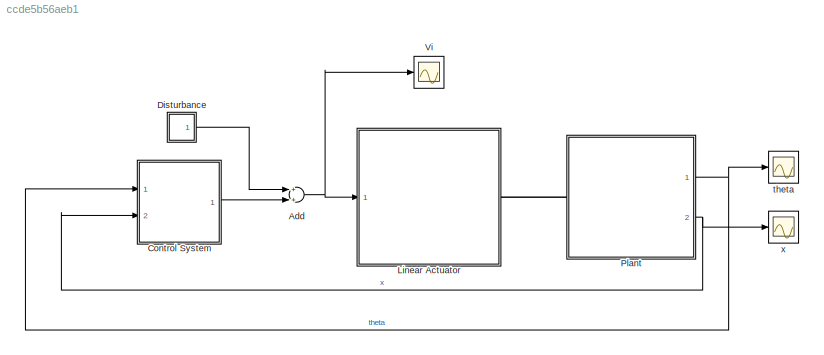
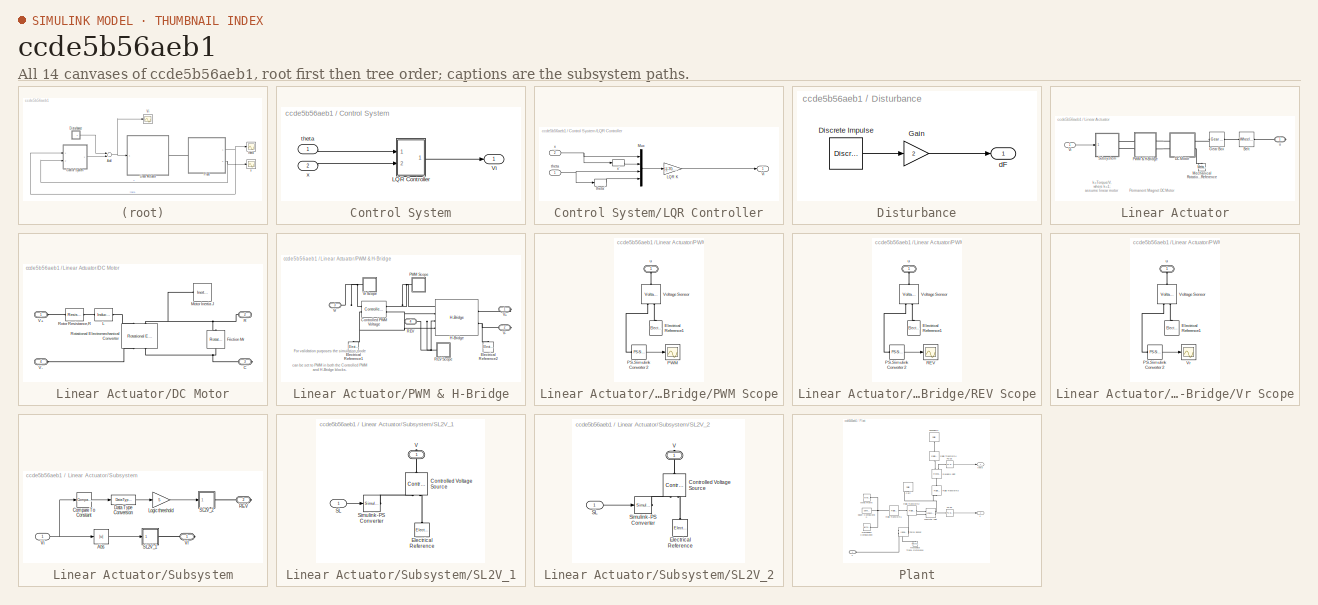
[diagram: thumbnail index - all 14 canvases of the model, root first then tree order]
MODEL slx_ccde5b56aeb1
KIND model
CONFIG AbsTol = auto
CONFIG FixedStep = auto
CONFIG MaxStep = 1e-3
CONFIG MinStep = auto
CONFIG RelTol = 1e-3
CONFIG SampleTimeConstraint = Unconstrained
CONFIG Solver = ode15s
CONFIG SolverMode = Auto
CONFIG SolverName = ode15s
CONFIG StartTime = 0.0
CONFIG StopTime = 12.00
WORKSPACE source: MATLAB code (in-file)
WORKSPACE mCart = 1
WORKSPACE mPend = 1
WORKSPACE g = 9.81
WORKSPACE L = 0.5
WORKSPACE theta0 = 0
WORKSPACE Kd = 10
BLOCK [Sum] Add
  InputSameDT = off
  OutDataTypeStr = Inherit: Inherit via internal rule
  Ports = [2, 1]
  SaturateOnIntegerOverflow = off
BLOCK [SubSystem] Control System
  Ports = [2, 1]
  RequestExecContextInheritance = off
  Variant = off
BLOCK [SubSystem] Control System/LQR Controller
  Ports = [2, 1]
  RequestExecContextInheritance = off
  Variant = off
BLOCK [Gain] Control System/LQR Controller/LQR K
  Gain = [-[-70.7107,-39.8418,-112.9919,-26.0522]]
  Multiplication = Matrix(K*u)
  OutDataTypeStr = Inherit: Inherit via internal rule
  ParamDataTypeStr = Inherit: Inherit via internal rule
  SaturateOnIntegerOverflow = off
BLOCK [Mux] Control System/LQR Controller/Mux
  DisplayOption = bar
  Ports = [4, 1]
BLOCK [Outport] Control System/LQR Controller/Vi
  IconDisplay = Port number
BLOCK [Inport] Control System/LQR Controller/theta
  IconDisplay = Port number
BLOCK [Derivative] Control System/LQR Controller/theta'
BLOCK [Inport] Control System/LQR Controller/x
  IconDisplay = Port number
  Port = 2
BLOCK [Derivative] Control System/LQR Controller/x'
BLOCK [Outport] Control System/Vi
  IconDisplay = Port number
BLOCK [Inport] Control System/theta
  IconDisplay = Port number
BLOCK [Inport] Control System/x
  IconDisplay = Port number
  Port = 2
BLOCK [SubSystem] Disturbance
  Ports = [0, 1]
  RequestExecContextInheritance = off
  Variant = off
BLOCK [Reference] Disturbance/Discrete Impulse  REF=dspsrcs4/Discrete 
Impulse
  Ports = [0, 1]
  SourceBlock = dspsrcs4/Discrete \nImpulse
  SourceType = Discrete Impulse
BLOCK [Gain] Disturbance/Gain
  Gain = 2
  OutDataTypeStr = Inherit: Inherit via internal rule
  ParamDataTypeStr = Inherit: Inherit via internal rule
  SaturateOnIntegerOverflow = off
BLOCK [Outport] Disturbance/dF
  IconDisplay = Port number
BLOCK [SubSystem] Linear Actuator
  Ports = [1, 0, 0, 0, 0, 0, 1]
  RequestExecContextInheritance = off
  Variant = off
BLOCK [Reference] Linear Actuator/Belt  REF=fl_lib/Mechanical/Mechanisms/Wheel and Axle
  Ports = [0, 0, 0, 0, 0, 1, 1]
  SourceBlock = fl_lib/Mechanical/Mechanisms/Wheel and Axle
  SourceType = Wheel and Axle
BLOCK [SubSystem] Linear Actuator/DC Motor
  Ports = [0, 0, 0, 0, 0, 2, 2]
  RequestExecContextInheritance = off
  Variant = off
BLOCK [PMIOPort] Linear Actuator/DC Motor/C
  Port = 3
  Side = Right
BLOCK [Reference] Linear Actuator/DC Motor/Friction Mr  REF=fl_lib/Mechanical/Rotational Elements/Rotational Friction
  Ports = [0, 0, 0, 0, 0, 1, 1]
  SourceBlock = fl_lib/Mechanical/Rotational Elements/Rotational Friction
  SourceType = Rotational Friction
BLOCK [Reference] Linear Actuator/DC Motor/L  REF=fl_lib/Electrical/Electrical Elements/Inductor
  Ports = [0, 0, 0, 0, 0, 1, 1]
  SourceBlock = fl_lib/Electrical/Electrical Elements/Inductor
  SourceType = Inductor
BLOCK [Reference] Linear Actuator/DC Motor/Motor Inertia J  REF=fl_lib/Mechanical/Rotational Elements/Inertia
  Ports = [0, 0, 0, 0, 0, 1]
  SourceBlock = fl_lib/Mechanical/Rotational Elements/Inertia
  SourceType = Inertia
BLOCK [PMIOPort] Linear Actuator/DC Motor/R
  Port = 2
  Side = Right
BLOCK [Reference] Linear Actuator/DC Motor/Rotational Electromechanical Converter  REF=fl_lib/Electrical/Electrical Elements/Rotational
Electromechanical
Converter
  Ports = [0, 0, 0, 0, 0, 2, 2]
  SourceBlock = fl_lib/Electrical/Electrical Elements/Rotational\nElectromechanical\nConverter
  SourceType = Rotational\nElectromechanical\nConverter
BLOCK [Reference] Linear Actuator/DC Motor/Rotor Resistance,R  REF=fl_lib/Electrical/Electrical Elements/Resistor
  Ports = [0, 0, 0, 0, 0, 1, 1]
  SourceBlock = fl_lib/Electrical/Electrical Elements/Resistor
  SourceType = Resistor
  Tag = Factory Generic
BLOCK [PMIOPort] Linear Actuator/DC Motor/V+
  Port = 1
  Side = Left
BLOCK [PMIOPort] Linear Actuator/DC Motor/V-
  Port = 4
  Side = Left
BLOCK [Reference] Linear Actuator/Gear Box  REF=fl_lib/Mechanical/Mechanisms/Gear Box
  Ports = [0, 0, 0, 0, 0, 1, 1]
  SourceBlock = fl_lib/Mechanical/Mechanisms/Gear Box
  SourceType = Gear Box
BLOCK [Reference] Linear Actuator/Mechanical Rotational Reference  REF=fl_lib/Mechanical/Rotational Elements/Mechanical
Rotational Reference
  Ports = [0, 0, 0, 0, 0, 1]
  SourceBlock = fl_lib/Mechanical/Rotational Elements/Mechanical\nRotational Reference
  SourceType = Mechanical\nRotational Reference
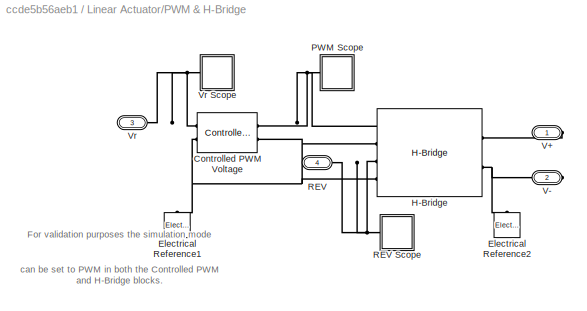
BLOCK [SubSystem] Linear Actuator/PWM & H-Bridge
  Ports = [0, 0, 0, 0, 0, 2, 2]
  RequestExecContextInheritance = off
  Variant = off
BLOCK [Reference] Linear Actuator/PWM & H-Bridge/Controlled PWM Voltage  REF=elec_lib/Actuators & Drivers/Drivers/Controlled PWM
Voltage
  Ports = [0, 0, 0, 0, 0, 2, 2]
  SourceBlock = elec_lib/Actuators & Drivers/Drivers/Controlled PWM\nVoltage
  SourceType = Controlled PWM\nVoltage
BLOCK [Reference] Linear Actuator/PWM & H-Bridge/Electrical Reference1  REF=fl_lib/Electrical/Electrical Elements/Electrical Reference
  Ports = [0, 0, 0, 0, 0, 1]
  SourceBlock = fl_lib/Electrical/Electrical Elements/Electrical Reference
  SourceType = Electrical Reference
BLOCK [Reference] Linear Actuator/PWM & H-Bridge/Electrical Reference2  REF=fl_lib/Electrical/Electrical Elements/Electrical Reference
  Ports = [0, 0, 0, 0, 0, 1]
  SourceBlock = fl_lib/Electrical/Electrical Elements/Electrical Reference
  SourceType = Electrical Reference
BLOCK [Reference] Linear Actuator/PWM & H-Bridge/H-Bridge  REF=elec_lib/Actuators & Drivers/Drivers/H-Bridge
  Ports = [0, 0, 0, 0, 0, 4, 2]
  SourceBlock = elec_lib/Actuators & Drivers/Drivers/H-Bridge
  SourceType = H-Bridge
BLOCK [SubSystem] Linear Actuator/PWM & H-Bridge/PWM Scope
  Ports = [0, 0, 0, 0, 0, 1]
  RequestExecContextInheritance = off
  Variant = off
BLOCK [Reference] Linear Actuator/PWM & H-Bridge/PWM Scope/Electrical Reference1  REF=fl_lib/Electrical/Electrical Elements/Electrical Reference
  Ports = [0, 0, 0, 0, 0, 1]
  SourceBlock = fl_lib/Electrical/Electrical Elements/Electrical Reference
  SourceType = Electrical Reference
BLOCK [Reference] Linear Actuator/PWM & H-Bridge/PWM Scope/PS-Simulink Converter 2  REF=nesl_utility/PS-Simulink
Converter
  Ports = [0, 1, 0, 0, 0, 1]
  SourceBlock = nesl_utility/PS-Simulink\nConverter
  SourceType = PS-Simulink\nConverter
BLOCK [Scope] Linear Actuator/PWM & H-Bridge/PWM Scope/PWM
  Ports = [1]
  ScopeSpecificationString = Simulink.scopes.TimeScopeBlockCfg('CurrentConfiguration', extmgr.ConfigurationSet(extmgr.Configuration('Core','General UI',true),extmgr.Configuration('Core','Source UI',true),extmgr.Configuration('Sources','WiredSimulink',true,'DataLoggingVariableName','ScopeData6','DataLoggingSaveFormat','StructureWithTime','DataLoggingDecimation','1','DataLoggingDecimateData',true),extmgr.Configuration('Visuals'...<+1635ch>
BLOCK [Reference] Linear Actuator/PWM & H-Bridge/PWM Scope/Voltage Sensor  REF=fl_lib/Electrical/Electrical Sensors/Voltage Sensor
  Ports = [0, 0, 0, 0, 0, 1, 2]
  SourceBlock = fl_lib/Electrical/Electrical Sensors/Voltage Sensor
  SourceType = Voltage Sensor
BLOCK [PMIOPort] Linear Actuator/PWM & H-Bridge/PWM Scope/u
  Port = 1
  Side = Left
BLOCK [PMIOPort] Linear Actuator/PWM & H-Bridge/REV
  Port = 4
  Side = Left
BLOCK [SubSystem] Linear Actuator/PWM & H-Bridge/REV Scope
  Ports = [0, 0, 0, 0, 0, 1]
  RequestExecContextInheritance = off
  Variant = off
BLOCK [Reference] Linear Actuator/PWM & H-Bridge/REV Scope/Electrical Reference1  REF=fl_lib/Electrical/Electrical Elements/Electrical Reference
  Ports = [0, 0, 0, 0, 0, 1]
  SourceBlock = fl_lib/Electrical/Electrical Elements/Electrical Reference
  SourceType = Electrical Reference
BLOCK [Reference] Linear Actuator/PWM & H-Bridge/REV Scope/PS-Simulink Converter 2  REF=nesl_utility/PS-Simulink
Converter
  Ports = [0, 1, 0, 0, 0, 1]
  SourceBlock = nesl_utility/PS-Simulink\nConverter
  SourceType = PS-Simulink\nConverter
BLOCK [Scope] Linear Actuator/PWM & H-Bridge/REV Scope/REV
  Ports = [1]
  ScopeSpecificationString = Simulink.scopes.TimeScopeBlockCfg('CurrentConfiguration', extmgr.ConfigurationSet(extmgr.Configuration('Core','General UI',true),extmgr.Configuration('Core','Source UI',true),extmgr.Configuration('Sources','WiredSimulink',true,'DataLoggingVariableName','ScopeData6','DataLoggingSaveFormat','StructureWithTime','DataLoggingDecimation','1','DataLoggingDecimateData',true),extmgr.Configuration('Visuals'...<+1636ch>
BLOCK [Reference] Linear Actuator/PWM & H-Bridge/REV Scope/Voltage Sensor  REF=fl_lib/Electrical/Electrical Sensors/Voltage Sensor
  Ports = [0, 0, 0, 0, 0, 1, 2]
  SourceBlock = fl_lib/Electrical/Electrical Sensors/Voltage Sensor
  SourceType = Voltage Sensor
BLOCK [PMIOPort] Linear Actuator/PWM & H-Bridge/REV Scope/u
  Port = 1
  Side = Left
BLOCK [PMIOPort] Linear Actuator/PWM & H-Bridge/V+
  Port = 1
  Side = Right
BLOCK [PMIOPort] Linear Actuator/PWM & H-Bridge/V-
  Port = 2
  Side = Right
BLOCK [PMIOPort] Linear Actuator/PWM & H-Bridge/Vr
  Port = 3
  Side = Left
BLOCK [SubSystem] Linear Actuator/PWM & H-Bridge/Vr Scope
  Ports = [0, 0, 0, 0, 0, 1]
  RequestExecContextInheritance = off
  Variant = off
BLOCK [Reference] Linear Actuator/PWM & H-Bridge/Vr Scope/Electrical Reference1  REF=fl_lib/Electrical/Electrical Elements/Electrical Reference
  Ports = [0, 0, 0, 0, 0, 1]
  SourceBlock = fl_lib/Electrical/Electrical Elements/Electrical Reference
  SourceType = Electrical Reference
BLOCK [Reference] Linear Actuator/PWM & H-Bridge/Vr Scope/PS-Simulink Converter 2  REF=nesl_utility/PS-Simulink
Converter
  Ports = [0, 1, 0, 0, 0, 1]
  SourceBlock = nesl_utility/PS-Simulink\nConverter
  SourceType = PS-Simulink\nConverter
BLOCK [Reference] Linear Actuator/PWM & H-Bridge/Vr Scope/Voltage Sensor  REF=fl_lib/Electrical/Electrical Sensors/Voltage Sensor
  Ports = [0, 0, 0, 0, 0, 1, 2]
  SourceBlock = fl_lib/Electrical/Electrical Sensors/Voltage Sensor
  SourceType = Voltage Sensor
BLOCK [Scope] Linear Actuator/PWM & H-Bridge/Vr Scope/Vr
  Ports = [1]
  ScopeSpecificationString = Simulink.scopes.TimeScopeBlockCfg('CurrentConfiguration', extmgr.ConfigurationSet(extmgr.Configuration('Core','General UI',true),extmgr.Configuration('Core','Source UI',true),extmgr.Configuration('Sources','WiredSimulink',true,'DataLoggingVariableName','ScopeData6','DataLoggingSaveFormat','StructureWithTime','DataLoggingDecimation','1','DataLoggingDecimateData',true),extmgr.Configuration('Visuals'...<+1637ch>
BLOCK [PMIOPort] Linear Actuator/PWM & H-Bridge/Vr Scope/u
  Port = 1
  Side = Left
BLOCK [SubSystem] Linear Actuator/Subsystem
  Ports = [1, 0, 0, 0, 0, 0, 2]
  RequestExecContextInheritance = off
  Variant = off
BLOCK [Abs] Linear Actuator/Subsystem/Abs
  SaturateOnIntegerOverflow = off
  ZeroCross = off
BLOCK [Reference] Linear Actuator/Subsystem/Compare To Constant  REF=simulink/Logic and Bit
Operations/Compare
To Constant
  Ports = [1, 1]
  SourceBlock = simulink/Logic and Bit\nOperations/Compare\nTo Constant
  SourceType = Compare To Constant
BLOCK [DataTypeConversion] Linear Actuator/Subsystem/Data Type Conversion
  RndMeth = Floor
  SaturateOnIntegerOverflow = off
BLOCK [Gain] Linear Actuator/Subsystem/Logic threshold
  Gain = 5
  OutDataTypeStr = Inherit: Inherit via internal rule
  ParamDataTypeStr = Inherit: Inherit via internal rule
  SaturateOnIntegerOverflow = off
BLOCK [PMIOPort] Linear Actuator/Subsystem/REV
  Port = 2
  Side = Right
BLOCK [SubSystem] Linear Actuator/Subsystem/SL2V_1
  Ports = [1, 0, 0, 0, 0, 0, 1]
  RequestExecContextInheritance = off
  Variant = off
BLOCK [Reference] Linear Actuator/Subsystem/SL2V_1/Controlled Voltage Source  REF=fl_lib/Electrical/Electrical Sources/Controlled Voltage
Source
  Ports = [0, 0, 0, 0, 0, 1, 2]
  SourceBlock = fl_lib/Electrical/Electrical Sources/Controlled Voltage\nSource
  SourceType = Controlled Voltage\nSource
BLOCK [Reference] Linear Actuator/Subsystem/SL2V_1/Electrical Reference  REF=fl_lib/Electrical/Electrical Elements/Electrical Reference
  Ports = [0, 0, 0, 0, 0, 1]
  SourceBlock = fl_lib/Electrical/Electrical Elements/Electrical Reference
  SourceType = Electrical Reference
BLOCK [Inport] Linear Actuator/Subsystem/SL2V_1/SL
  IconDisplay = Port number
BLOCK [Reference] Linear Actuator/Subsystem/SL2V_1/Simulink-PS Converter  REF=nesl_utility/Simulink-PS
Converter
  Ports = [1, 0, 0, 0, 0, 0, 1]
  SourceBlock = nesl_utility/Simulink-PS\nConverter
  SourceType = Simulink-PS\nConverter
BLOCK [PMIOPort] Linear Actuator/Subsystem/SL2V_1/V
  Port = 1
  Side = Right
BLOCK [SubSystem] Linear Actuator/Subsystem/SL2V_2
  Ports = [1, 0, 0, 0, 0, 0, 1]
  RequestExecContextInheritance = off
  Variant = off
BLOCK [Reference] Linear Actuator/Subsystem/SL2V_2/Controlled Voltage Source  REF=fl_lib/Electrical/Electrical Sources/Controlled Voltage
Source
  Ports = [0, 0, 0, 0, 0, 1, 2]
  SourceBlock = fl_lib/Electrical/Electrical Sources/Controlled Voltage\nSource
  SourceType = Controlled Voltage\nSource
BLOCK [Reference] Linear Actuator/Subsystem/SL2V_2/Electrical Reference  REF=fl_lib/Electrical/Electrical Elements/Electrical Reference
  Ports = [0, 0, 0, 0, 0, 1]
  SourceBlock = fl_lib/Electrical/Electrical Elements/Electrical Reference
  SourceType = Electrical Reference
BLOCK [Inport] Linear Actuator/Subsystem/SL2V_2/SL
  IconDisplay = Port number
BLOCK [Reference] Linear Actuator/Subsystem/SL2V_2/Simulink-PS Converter  REF=nesl_utility/Simulink-PS
Converter
  Ports = [1, 0, 0, 0, 0, 0, 1]
  SourceBlock = nesl_utility/Simulink-PS\nConverter
  SourceType = Simulink-PS\nConverter
BLOCK [PMIOPort] Linear Actuator/Subsystem/SL2V_2/V
  Port = 1
  Side = Right
BLOCK [Inport] Linear Actuator/Subsystem/Vi
  IconDisplay = Port number
BLOCK [PMIOPort] Linear Actuator/Subsystem/Vr
  Port = 1
  Side = Right
BLOCK [Inport] Linear Actuator/Vi
  IconDisplay = Port number
BLOCK [PMIOPort] Linear Actuator/u
  Port = 1
  Side = Right
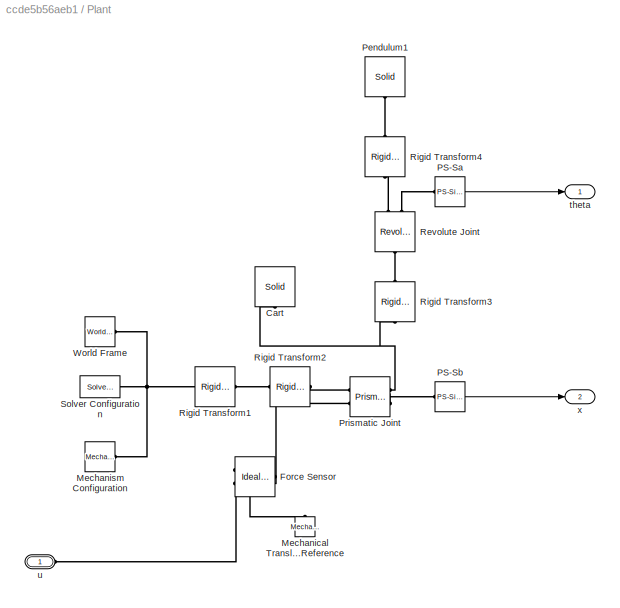
BLOCK [SubSystem] Plant
  Ports = [0, 2, 0, 0, 0, 1]
  RequestExecContextInheritance = off
  Variant = off
BLOCK [Reference] Plant/Cart  REF=sm_lib/Body Elements/Solid
  Ports = [0, 0, 0, 0, 0, 0, 1]
  SourceBlock = sm_lib/Body Elements/Solid
  SourceType = Solid
BLOCK [Reference] Plant/Force Sensor  REF=fl_lib/Mechanical/Mechanical Sensors/Ideal Force Sensor
  Ports = [0, 0, 0, 0, 0, 1, 2]
  SourceBlock = fl_lib/Mechanical/Mechanical Sensors/Ideal Force Sensor
  SourceType = Ideal Force Sensor
BLOCK [Reference] Plant/Mechanical Translational Reference  REF=fl_lib/Mechanical/Translational
Elements/Mechanical
Translational
Reference
  Ports = [0, 0, 0, 0, 0, 1]
  SourceBlock = fl_lib/Mechanical/Translational\nElements/Mechanical\nTranslational\nReference
  SourceType = Mechanical\nTranslational\nReference
BLOCK [Reference] Plant/Mechanism Configuration  REF=sm_lib/Utilities/Mechanism
Configuration
  Ports = [0, 0, 0, 0, 0, 0, 1]
  SourceBlock = sm_lib/Utilities/Mechanism\nConfiguration
  SourceType = Mechanism\nConfiguration
BLOCK [Reference] Plant/PS-Sa  REF=nesl_utility/PS-Simulink
Converter
  Ports = [0, 1, 0, 0, 0, 1]
  SourceBlock = nesl_utility/PS-Simulink\nConverter
  SourceType = PS-Simulink\nConverter
BLOCK [Reference] Plant/PS-Sb  REF=nesl_utility/PS-Simulink
Converter
  Ports = [0, 1, 0, 0, 0, 1]
  SourceBlock = nesl_utility/PS-Simulink\nConverter
  SourceType = PS-Simulink\nConverter
BLOCK [Reference] Plant/Pendulum1  REF=sm_lib/Body Elements/Solid
  Ports = [0, 0, 0, 0, 0, 0, 1]
  SourceBlock = sm_lib/Body Elements/Solid
  SourceType = Solid
BLOCK [Reference] Plant/Prismatic Joint  REF=sm_lib/Joints/Prismatic
Joint
  Ports = [0, 0, 0, 0, 0, 2, 2]
  SourceBlock = sm_lib/Joints/Prismatic\nJoint
  SourceType = Prismatic\nJoint
BLOCK [Reference] Plant/Revolute Joint  REF=sm_lib/Joints/Revolute Joint
  Ports = [0, 0, 0, 0, 0, 1, 2]
  SourceBlock = sm_lib/Joints/Revolute Joint
  SourceType = Revolute Joint
BLOCK [Reference] Plant/Rigid Transform1  REF=sm_lib/Frames and
Transforms/Rigid
Transform
  Ports = [0, 0, 0, 0, 0, 1, 1]
  SourceBlock = sm_lib/Frames and\nTransforms/Rigid\nTransform
  SourceType = Rigid\nTransform
BLOCK [Reference] Plant/Rigid Transform2  REF=sm_lib/Frames and
Transforms/Rigid
Transform
  Ports = [0, 0, 0, 0, 0, 1, 1]
  SourceBlock = sm_lib/Frames and\nTransforms/Rigid\nTransform
  SourceType = Rigid\nTransform
BLOCK [Reference] Plant/Rigid Transform3  REF=sm_lib/Frames and
Transforms/Rigid
Transform
  Ports = [0, 0, 0, 0, 0, 1, 1]
  SourceBlock = sm_lib/Frames and\nTransforms/Rigid\nTransform
  SourceType = Rigid\nTransform
BLOCK [Reference] Plant/Rigid Transform4  REF=sm_lib/Frames and
Transforms/Rigid
Transform
  Ports = [0, 0, 0, 0, 0, 1, 1]
  SourceBlock = sm_lib/Frames and\nTransforms/Rigid\nTransform
  SourceType = Rigid\nTransform
BLOCK [Reference] Plant/Solver Configuration  REF=nesl_utility/Solver
Configuration
  Ports = [0, 0, 0, 0, 0, 0, 1]
  SourceBlock = nesl_utility/Solver\nConfiguration
  SourceType = Solver\nConfiguration
BLOCK [Reference] Plant/World Frame  REF=sm_lib/Frames and
Transforms/World Frame
  Ports = [0, 0, 0, 0, 0, 0, 1]
  SourceBlock = sm_lib/Frames and\nTransforms/World Frame
  SourceType = World Frame
BLOCK [Outport] Plant/theta
  IconDisplay = Port number
BLOCK [PMIOPort] Plant/u
  Port = 1
  Side = Left
BLOCK [Outport] Plant/x
  IconDisplay = Port number
  Port = 2
BLOCK [Scope] Vi
  Ports = [1]
  ScopeSpecificationString = Simulink.scopes.TimeScopeBlockCfg('CurrentConfiguration', extmgr.ConfigurationSet(extmgr.Configuration('Core','General UI',true),extmgr.Configuration('Core','Source UI',true),extmgr.Configuration('Sources','WiredSimulink',true,'DataLoggingVariableName','ScopeData2'),extmgr.Configuration('Visuals','Time Domain',true,'SerializedDisplays',{struct('MinYLimReal','-2.48345','MaxYLimReal','2.49816','YLab...<+1391ch>
BLOCK [Scope] theta
  Ports = [1]
  ScopeSpecificationString = Simulink.scopes.TimeScopeBlockCfg('CurrentConfiguration', extmgr.ConfigurationSet(extmgr.Configuration('Core','General UI',true),extmgr.Configuration('Core','Source UI',true),extmgr.Configuration('Sources','WiredSimulink',true),extmgr.Configuration('Visuals','Time Domain',true,'SerializedDisplays',{struct('MinYLimReal','-0.03179','MaxYLimReal','0.03364','YLabelReal','','MinYLimMag','0.00000','MaxY...<+1325ch>
BLOCK [Scope] x
  Ports = [1]
  ScopeSpecificationString = Simulink.scopes.TimeScopeBlockCfg('CurrentConfiguration', extmgr.ConfigurationSet(extmgr.Configuration('Core','General UI',true),extmgr.Configuration('Core','Source UI',true),extmgr.Configuration('Sources','WiredSimulink',true,'DataLoggingVariableName','ScopeData1'),extmgr.Configuration('Visuals','Time Domain',true,'SerializedDisplays',{struct('MinYLimReal','-0.0465','MaxYLimReal','0.01892','YLabe...<+1700ch>
ANNOTATION Linear Actuator: Permanent Magnet DC Motor
ANNOTATION Linear Actuator: k=Torque/V, where k=1; assume linear motor
ANNOTATION Linear Actuator/PWM & H-Bridge: For validation purposes the simulation mode can be set to PWM in both the Controlled PWM and H-Bridge blocks.
NET Add:1 -> Linear Actuator:1, Vi:1
LINE Control System/LQR Controller/LQR K:1 -> Control System/LQR Controller/Vi:1
LINE Control System/LQR Controller/Mux:1 -> Control System/LQR Controller/LQR K:1
LINE Control System/LQR Controller/theta':1 -> Control System/LQR Controller/Mux:4
NET Control System/LQR Controller/theta:1 -> Control System/LQR Controller/Mux:3, Control System/LQR Controller/theta':1
LINE Control System/LQR Controller/x':1 -> Control System/LQR Controller/Mux:2
NET Control System/LQR Controller/x:1 -> Control System/LQR Controller/Mux:1, Control System/LQR Controller/x':1
LINE Control System/LQR Controller:1 -> Control System/Vi:1
LINE Control System/theta:1 -> Control System/LQR Controller:1
LINE Control System/x:1 -> Control System/LQR Controller:2
LINE Control System:1 -> Add:2
LINE Disturbance/Discrete Impulse:1 -> Disturbance/Gain:1
LINE Disturbance/Gain:1 -> Disturbance/dF:1
LINE Disturbance:1 -> Add:1
LINE Linear Actuator/PWM & H-Bridge/PWM Scope/PS-Simulink Converter 2:1 -> Linear Actuator/PWM & H-Bridge/PWM Scope/PWM:1
LINE Linear Actuator/PWM & H-Bridge/REV Scope/PS-Simulink Converter 2:1 -> Linear Actuator/PWM & H-Bridge/REV Scope/REV:1
LINE Linear Actuator/PWM & H-Bridge/Vr Scope/PS-Simulink Converter 2:1 -> Linear Actuator/PWM & H-Bridge/Vr Scope/Vr:1
LINE Linear Actuator/Subsystem/Abs:1 -> Linear Actuator/Subsystem/SL2V_1:1
LINE Linear Actuator/Subsystem/Compare To Constant:1 -> Linear Actuator/Subsystem/Data Type Conversion:1
LINE Linear Actuator/Subsystem/Data Type Conversion:1 -> Linear Actuator/Subsystem/Logic threshold:1
LINE Linear Actuator/Subsystem/Logic threshold:1 -> Linear Actuator/Subsystem/SL2V_2:1
LINE Linear Actuator/Subsystem/SL2V_1/SL:1 -> Linear Actuator/Subsystem/SL2V_1/Simulink-PS Converter:1
LINE Linear Actuator/Subsystem/SL2V_2/SL:1 -> Linear Actuator/Subsystem/SL2V_2/Simulink-PS Converter:1
NET Linear Actuator/Subsystem/Vi:1 -> Linear Actuator/Subsystem/Abs:1, Linear Actuator/Subsystem/Compare To Constant:1
LINE Linear Actuator/Vi:1 -> Linear Actuator/Subsystem:1
LINE Plant/PS-Sa:1 -> Plant/theta:1
LINE Plant/PS-Sb:1 -> Plant/x:1
NET Plant:1 -> Control System:1, theta:1
NET Plant:2 -> Control System:2, x:1
PLINE Linear Actuator/Belt:LConn1 -- Linear Actuator/Gear Box:RConn1
PLINE Linear Actuator/Belt:RConn1 -- Linear Actuator/u:RConn1
PNET net1: Linear Actuator/DC Motor/C:RConn1 -- Linear Actuator/DC Motor/Friction Mr:RConn1 -- Linear Actuator/DC Motor/Rotational Electromechanical Converter:RConn2
PNET net2: Linear Actuator/DC Motor/Friction Mr:LConn1 -- Linear Actuator/DC Motor/Motor Inertia J:LConn1 -- Linear Actuator/DC Motor/R:RConn1 -- Linear Actuator/DC Motor/Rotational Electromechanical Converter:LConn2
PLINE Linear Actuator/DC Motor/L:LConn1 -- Linear Actuator/DC Motor/Rotor Resistance,R:RConn1
PLINE Linear Actuator/DC Motor/L:RConn1 -- Linear Actuator/DC Motor/Rotational Electromechanical Converter:LConn1
PLINE Linear Actuator/DC Motor/Rotational Electromechanical Converter:RConn1 -- Linear Actuator/DC Motor/V-:RConn1
PLINE Linear Actuator/DC Motor/Rotor Resistance,R:LConn1 -- Linear Actuator/DC Motor/V+:RConn1
PLINE Linear Actuator/DC Motor:LConn1 -- Linear Actuator/PWM & H-Bridge:RConn1
PLINE Linear Actuator/DC Motor:LConn2 -- Linear Actuator/PWM & H-Bridge:RConn2
PLINE Linear Actuator/DC Motor:RConn1 -- Linear Actuator/Gear Box:LConn1
PLINE Linear Actuator/DC Motor:RConn2 -- Linear Actuator/Mechanical Rotational Reference:LConn1
PNET net3: Linear Actuator/PWM & H-Bridge/Controlled PWM Voltage:LConn1 -- Linear Actuator/PWM & H-Bridge/Vr Scope:LConn1 -- Linear Actuator/PWM & H-Bridge/Vr:RConn1
PNET net4: Linear Actuator/PWM & H-Bridge/Controlled PWM Voltage:LConn2 -- Linear Actuator/PWM & H-Bridge/Controlled PWM Voltage:RConn2 -- Linear Actuator/PWM & H-Bridge/Electrical Reference1:LConn1 -- Linear Actuator/PWM & H-Bridge/H-Bridge:LConn2 -- Linear Actuator/PWM & H-Bridge/H-Bridge:LConn4
PNET net5: Linear Actuator/PWM & H-Bridge/Controlled PWM Voltage:RConn1 -- Linear Actuator/PWM & H-Bridge/H-Bridge:LConn1 -- Linear Actuator/PWM & H-Bridge/PWM Scope:LConn1
PNET net6: Linear Actuator/PWM & H-Bridge/Electrical Reference2:LConn1 -- Linear Actuator/PWM & H-Bridge/H-Bridge:RConn2 -- Linear Actuator/PWM & H-Bridge/V-:RConn1
PNET net7: Linear Actuator/PWM & H-Bridge/H-Bridge:LConn3 -- Linear Actuator/PWM & H-Bridge/REV Scope:LConn1 -- Linear Actuator/PWM & H-Bridge/REV:RConn1
PLINE Linear Actuator/PWM & H-Bridge/H-Bridge:RConn1 -- Linear Actuator/PWM & H-Bridge/V+:RConn1
PLINE Linear Actuator/PWM & H-Bridge/PWM Scope/Electrical Reference1:LConn1 -- Linear Actuator/PWM & H-Bridge/PWM Scope/Voltage Sensor:RConn2
PLINE Linear Actuator/PWM & H-Bridge/PWM Scope/PS-Simulink Converter 2:LConn1 -- Linear Actuator/PWM & H-Bridge/PWM Scope/Voltage Sensor:RConn1
PLINE Linear Actuator/PWM & H-Bridge/PWM Scope/Voltage Sensor:LConn1 -- Linear Actuator/PWM & H-Bridge/PWM Scope/u:RConn1
PLINE Linear Actuator/PWM & H-Bridge/REV Scope/Electrical Reference1:LConn1 -- Linear Actuator/PWM & H-Bridge/REV Scope/Voltage Sensor:RConn2
PLINE Linear Actuator/PWM & H-Bridge/REV Scope/PS-Simulink Converter 2:LConn1 -- Linear Actuator/PWM & H-Bridge/REV Scope/Voltage Sensor:RConn1
PLINE Linear Actuator/PWM & H-Bridge/REV Scope/Voltage Sensor:LConn1 -- Linear Actuator/PWM & H-Bridge/REV Scope/u:RConn1
PLINE Linear Actuator/PWM & H-Bridge/Vr Scope/Electrical Reference1:LConn1 -- Linear Actuator/PWM & H-Bridge/Vr Scope/Voltage Sensor:RConn2
PLINE Linear Actuator/PWM & H-Bridge/Vr Scope/PS-Simulink Converter 2:LConn1 -- Linear Actuator/PWM & H-Bridge/Vr Scope/Voltage Sensor:RConn1
PLINE Linear Actuator/PWM & H-Bridge/Vr Scope/Voltage Sensor:LConn1 -- Linear Actuator/PWM & H-Bridge/Vr Scope/u:RConn1
PLINE Linear Actuator/PWM & H-Bridge:LConn1 -- Linear Actuator/Subsystem:RConn1
PLINE Linear Actuator/PWM & H-Bridge:LConn2 -- Linear Actuator/Subsystem:RConn2
PLINE Linear Actuator/Subsystem/REV:RConn1 -- Linear Actuator/Subsystem/SL2V_2:RConn1
PLINE Linear Actuator/Subsystem/SL2V_1/Controlled Voltage Source:LConn1 -- Linear Actuator/Subsystem/SL2V_1/V:RConn1
PLINE Linear Actuator/Subsystem/SL2V_1/Controlled Voltage Source:RConn1 -- Linear Actuator/Subsystem/SL2V_1/Simulink-PS Converter:RConn1
PLINE Linear Actuator/Subsystem/SL2V_1/Controlled Voltage Source:RConn2 -- Linear Actuator/Subsystem/SL2V_1/Electrical Reference:LConn1
PLINE Linear Actuator/Subsystem/SL2V_1:RConn1 -- Linear Actuator/Subsystem/Vr:RConn1
PLINE Linear Actuator/Subsystem/SL2V_2/Controlled Voltage Source:LConn1 -- Linear Actuator/Subsystem/SL2V_2/V:RConn1
PLINE Linear Actuator/Subsystem/SL2V_2/Controlled Voltage Source:RConn1 -- Linear Actuator/Subsystem/SL2V_2/Simulink-PS Converter:RConn1
PLINE Linear Actuator/Subsystem/SL2V_2/Controlled Voltage Source:RConn2 -- Linear Actuator/Subsystem/SL2V_2/Electrical Reference:LConn1
PLINE Linear Actuator:RConn1 -- Plant:LConn1
PNET net8: Plant/Cart:RConn1 -- Plant/Prismatic Joint:RConn1 -- Plant/Rigid Transform3:LConn1
PLINE Plant/Force Sensor:LConn1 -- Plant/u:RConn1
PLINE Plant/Force Sensor:RConn1 -- Plant/Mechanical Translational Reference:LConn1
PLINE Plant/Force Sensor:RConn2 -- Plant/Prismatic Joint:LConn2
PNET net9: Plant/Mechanism Configuration:RConn1 -- Plant/Rigid Transform1:LConn1 -- Plant/Solver Configuration:RConn1 -- Plant/World Frame:RConn1
PLINE Plant/PS-Sa:LConn1 -- Plant/Revolute Joint:RConn2
PLINE Plant/PS-Sb:LConn1 -- Plant/Prismatic Joint:RConn2
PLINE Plant/Pendulum1:RConn1 -- Plant/Rigid Transform4:RConn1
PLINE Plant/Prismatic Joint:LConn1 -- Plant/Rigid Transform2:RConn1
PLINE Plant/Revolute Joint:LConn1 -- Plant/Rigid Transform3:RConn1
PLINE Plant/Revolute Joint:RConn1 -- Plant/Rigid Transform4:LConn1
PLINE Plant/Rigid Transform1:RConn1 -- Plant/Rigid Transform2:LConn1
note: NET lines group one-source signal fan-out (src -> all destinations, sorted); 1:1 wires keep LINE; PNET lines group multi-terminal physical nets as a canonical sorted terminal list (undirected conserving connections); 2-terminal nets keep the pairwise PLINE form
